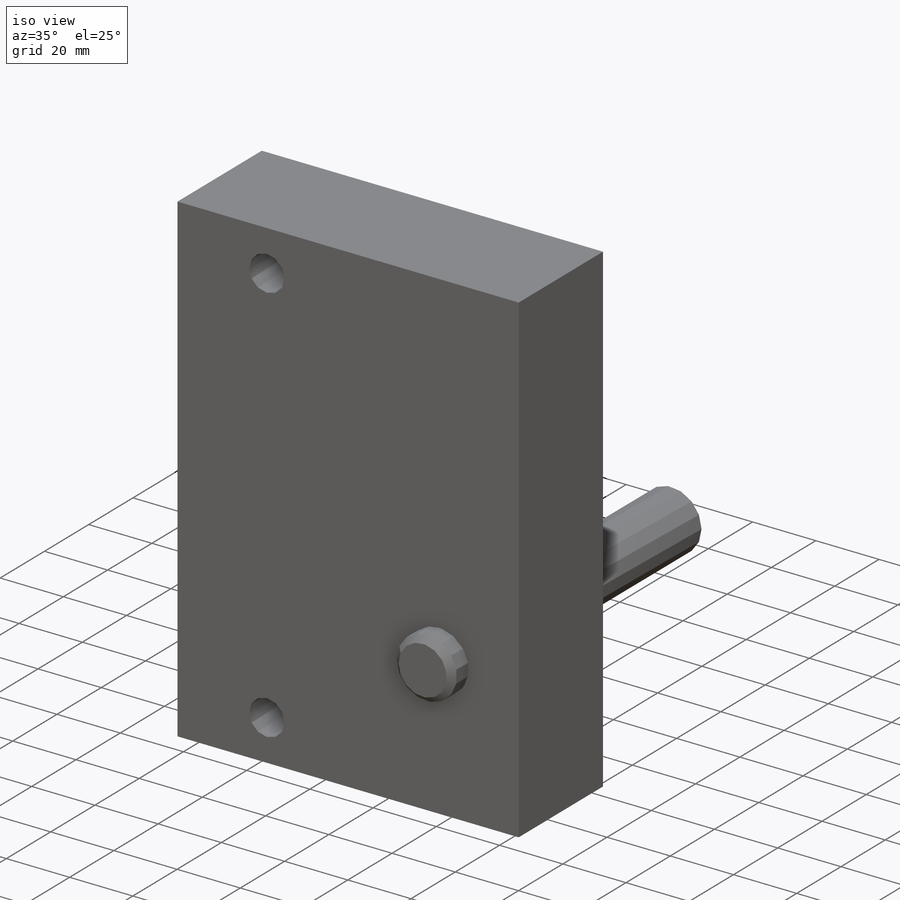
[diagram: iso view]
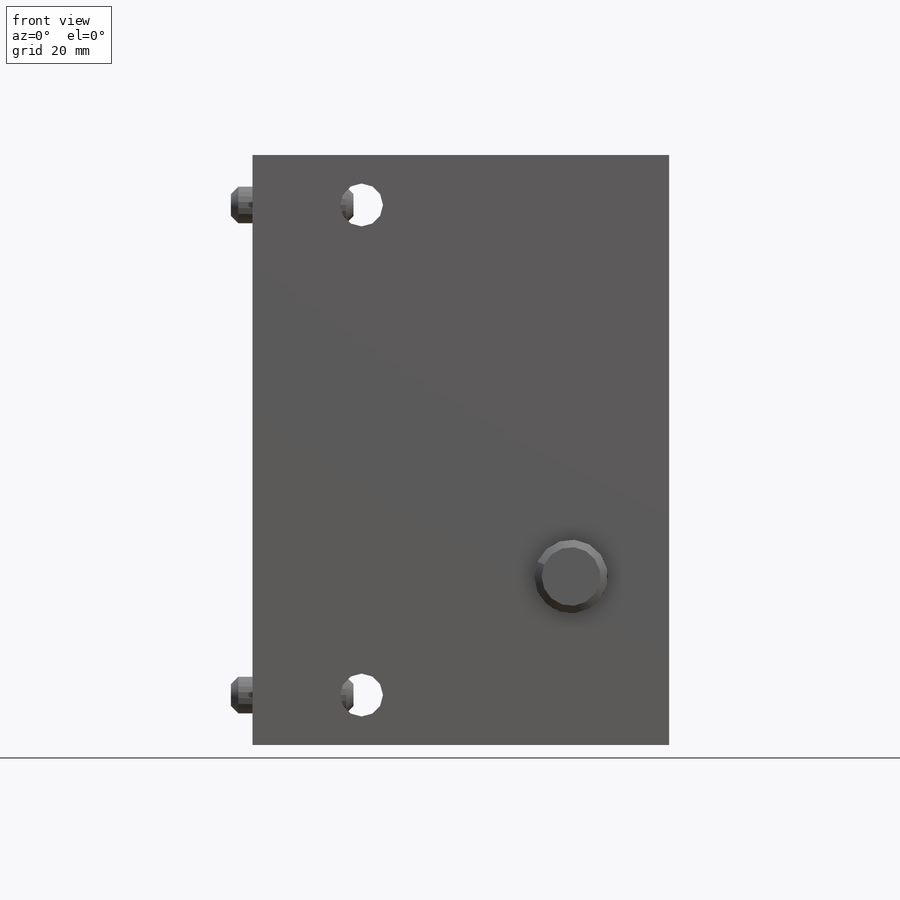
[diagram: front view]
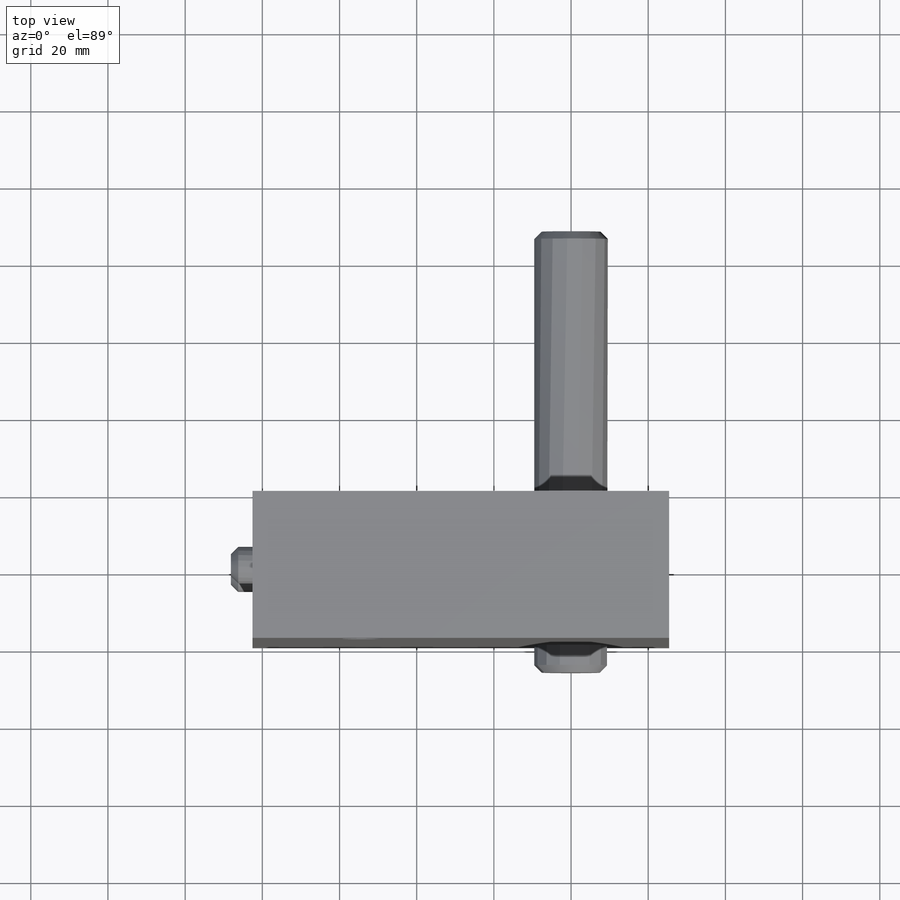
[diagram: top view]
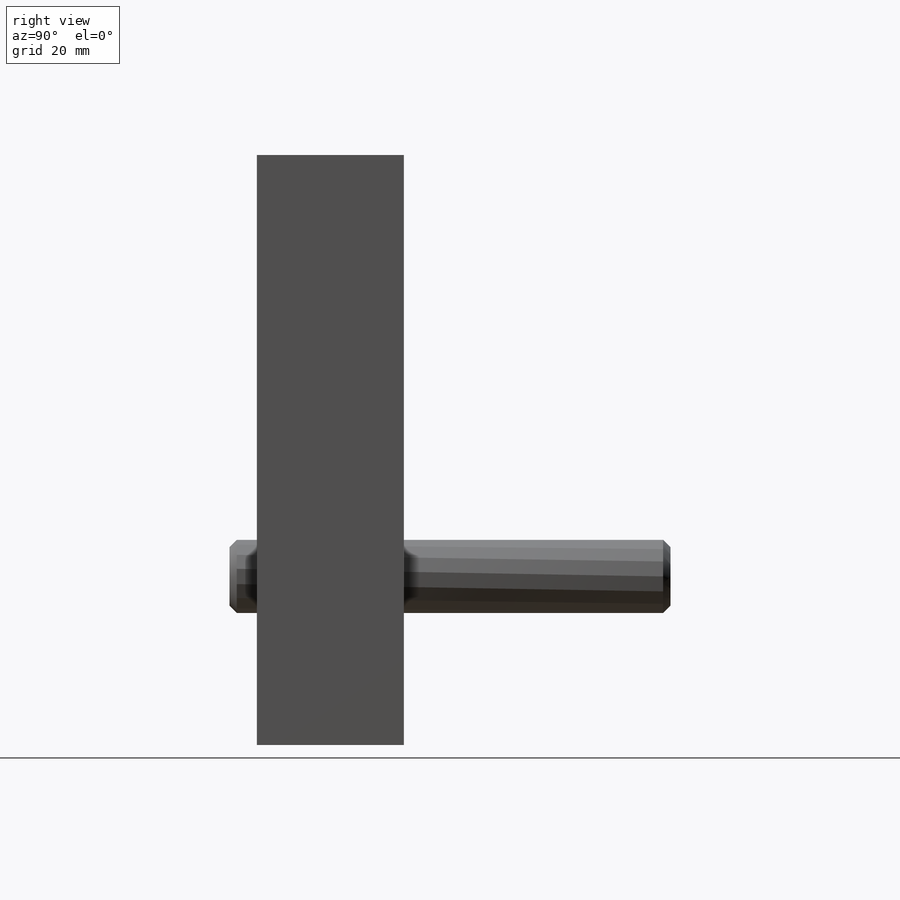
[diagram: right view]
SOLIDWORKS PART (.sldprt)
format: sldprt  version: not decoded by parser v0  size: 949,248 bytes
history: native  units: mm
features: sketch x7, hole x3, move_body x3, material x1, extrude x1 + 3 further entries (+26 scaffold rows collapsed; 13 parser-record rows omitted)
feature tree (57):
  scaffold x26  (default folders/planes/origin — collapsed)
  material  "6061-T6 Al"
  sketch  "Sketch6"  dims[c1.D1=21.59mm c1.D2=60.325mm c2.D1=63.5mm c2.D2=889.0mm c2.D3=917.575mm c2.D4=895.985mm c3.D2=904.24mm c3.D5=901.7mm c3.D6=906.78mm c4.D2=~1788.74878mm c4.D4=898.525mm c4.D7=917.575mm c4.D3=917.575mm c4.D9=2.54mm c4.D10=7.62mm c4.D1=17.78mm c4.D12=895.985mm c5.D1=~19.05762mm c5.D3=19.05mm c5.D5=19.05mm c5.D6=25.4mm c5.D4=19.05mm c6.D6=19.05mm c6.D5=19.05mm c6.D2=75.438mm c6.D1=5.08mm c7.D5=8.255mm c7.D6=8.255mm c7.D7=152.4mm c7.D1=304.8mm c8.D5=5.08mm c8.D1=~313.195127mm c8.D6=~31.158395mm c9.D1=~73.03881mm c9.D6=330.2mm c9.D7=6.35mm c9.D8=7.62mm c9.D10=3.302mm c9.D11=~174.532925mm c10.D10=1.27mm c10.D11=~158.568571mm c11.D10=1.27mm c11.D11=~174.532925mm c11.D6=330.2mm c12.D10=~108.162088mm c12.D11=~24.260077mm c12.D6=~329.349592mm c12.D12=~329.349592mm c13.D6=330.2mm c13.D13=~1047.197551mm c13.D14=~17.488308mm c14.D13=~1047.197551mm c14.D14=~349.06585mm c14.D15=~25.440094mm c14.D2=50.8mm c14.D3=98.425mm c14.D4=25.4mm c14.D5=127.0mm c14.D7=50.8mm c14.D8=~785.398163mm c15.D2=25.4mm c15.D4=~92.457396mm c15.D3=82.55mm c16.D4=~785.398163mm c16.D5=165.1mm c16.D6=25.4mm c16.D2=82.55mm c16.D3=109.22mm c17.D4=107.95mm c17.D5=107.95mm c17.D6=107.95mm c17.D7=25.4mm c17.D8=25.4mm c18.D7=25.4mm c18.D8=25.4mm c18.D4=25.4mm c18.D6=~785.398163mm c18.D5=25.4mm c19.D6=~86.369338mm c19.D5=152.908mm c20.D6=1.0mm c20.D12=2.54mm]
  extrude  "Boss-Extrude1"  Depth=38.1mm
  hole  "1/4-20 UNC Hole1"  Diameter=5.2324mm Depth=17.526mm
  sketch  "Sketch8"  dims[c1.D2=~9.53008mm c1.D6=9.525mm c1.D8=7.1374mm c1.D9=~9.53008mm c2.D2=~9.53008mm c2.D1=41.91mm c2.D3=127.0mm c3.D1=25.4mm c3.D4=9.652mm c3.D5=76.2mm c3.D3=25.4mm c3.D6=~67.998509mm c4.D4=4.8895mm c4.D6=~39.025345mm c5.D4=9.652mm c5.D6=127.0mm c5.D7=~43.007083mm c5.D8=41.91mm c5.D9=~61.696696mm c6.D4=7.62mm c6.D7=~18.183633mm c6.D8=7.62mm c7.D4=47.498mm c7.D7=~182.366441mm c7.D8=47.498mm c7.D9=47.498mm c8.D8=47.498mm c8.D9=47.498mm c9.D8=47.498mm c9.D9=47.498mm c10.D8=47.498mm c10.D9=47.498mm c11.D8=47.498mm c11.D9=47.498mm c12.D8=47.498mm c12.D9=47.498mm c13.D8=47.498mm c13.D9=47.498mm c14.D8=47.498mm c14.D9=47.498mm c15.D8=47.498mm c15.D4=47.498mm c15.D7=~12.93876mm c15.D9=~7.92226mm c15.D10=94.488mm c15.D2=~23.028548mm c15.D3=~38.531605mm c16.D7=12.954mm c16.D3=127.0mm]
  sketch  "Sketch9"  dims[hole-wizard template sketch: 20 standard entries collapsed; hole parameters kept: c3.Tap Drill Dia.=5.2324mm c3.Tap Drill Depth=17.526mm c3.Thread Major Dia.=6.35mm c3.Thread Depth=13.716mm c3.Near C'Sink Dia.=7.62mm c3.Near C'Sink Angle=~1570.796327mm c3.Drill Angle=~2059.488517mm]  [2 undecoded]
  hole  "3/8 (0.375) Diameter Hole1"  Diameter=9.53008mm Depth=25.4mm
  sketch  "Sketch10"  dims[D1=9.525mm]
  sketch  "Sketch11"  dims[hole-wizard template sketch: 34 standard entries collapsed; hole parameters kept: c5.Hole Dia.=~9.53008mm c5.Hole Depth=25.4mm c5.Drill Angle=~2059.488517mm]  [1 undecoded]
  hole  "7/16 (0.4375) Diameter Hole1"  Diameter=11.1125mm Depth=38.1mm
  sketch  "Sketch13"
  sketch  "Sketch14"  dims[hole-wizard template sketch: 44 standard entries collapsed; hole parameters kept: c7.Thru Hole Dia.=11.1125mm c7.Thru Hole Depth=38.1mm]
  "MS16555-710 (Dowel Pin, 0.7502D, 4.50L)"
  parser-record x13  (decoder bookkeeping rows leaked as tree rows — omitted from the tree; the rows remain in map.json)
  move_body  "Body-Move/Copy2"
  "MS16555-660 (Dowel Pin, 0.3752D, 1.25L)"
  move_body  "Body-Move/Copy4"
  "MS16555-660 (Dowel Pin, 0.3752D, 1.25L)2"
  move_body  "Body-Move/Copy6"
decode coverage: 10 of 14 modeling features carry decoded parameters; 3 rows unclassified (native names shown)
note: ~ marks probable driven/reference dimensions
note: suppression state not decoded; provenance and decode notes live in map.json
note: 3 required parameter values undecoded (feature->parameter linkage not recoverable at this tier; creation-order binding heuristic only, values carry confidence <= 0.55)
